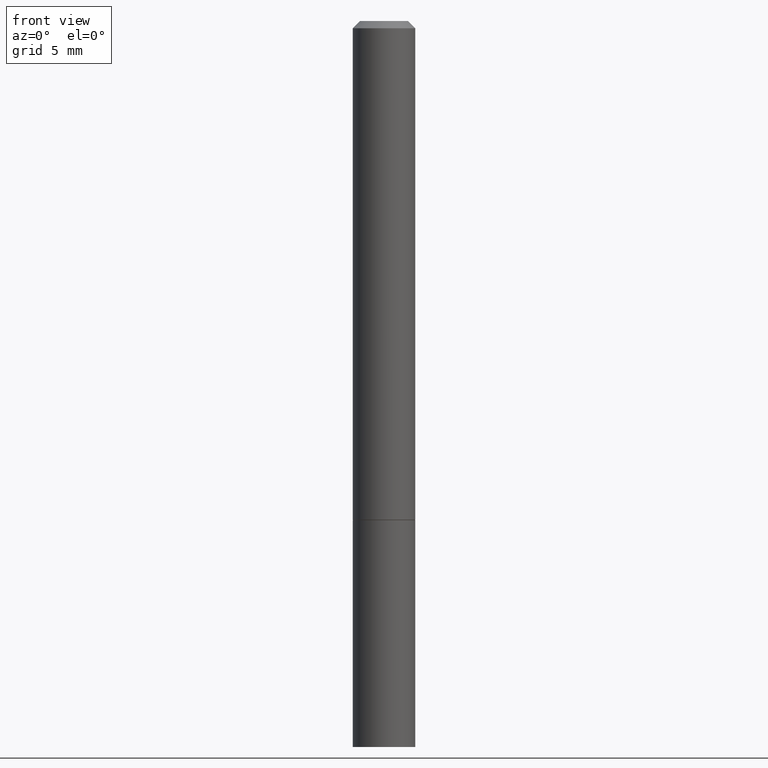
[diagram: clean part render]
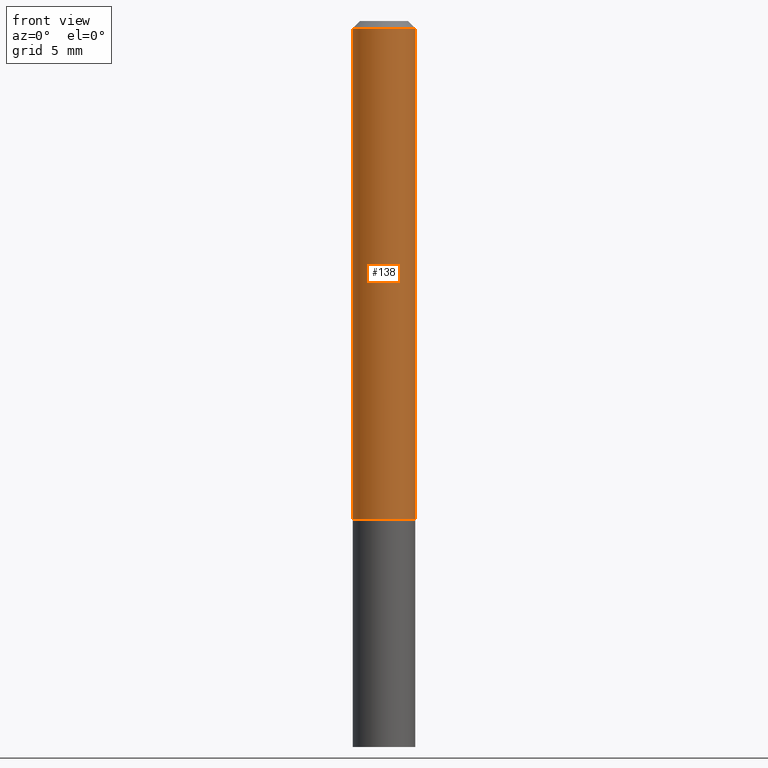
[diagram: same view with one face highlighted and labeled with its STEP entity id]
A machine part, front view. The second image highlights one B-rep face of the part: STEP entity #138.
In plain terms, the highlighted cylindrical surface (edge-blend (fillet) strip) has radius 2.1831 mm, axis along (-0, 0, 1).
Its self-contained STEP definition (entity closure, byte-faithful):
#2 = AXIS2_PLACEMENT_3D ( 'NONE', #16, #259, #106 ) ;
#16 = CARTESIAN_POINT ( 'NONE',  ( 4.890937612370278413E-31, -6.982962677686297772E-17, -0.02000000000000002123 ) ) ;
#18 = DIRECTION ( 'NONE',  ( -2.445468806185136877E-29, 3.491481338843145188E-15, 1.000000000000000000 ) ) ;
#20 = CARTESIAN_POINT ( 'NONE',  ( 0.000000000000000000, 0.000000000000000000, 0.000000000000000000 ) ) ;
#22 = CARTESIAN_POINT ( 'NONE',  ( -0.08594999999999981821, 5.303560153702704350E-16, -0.02000000000000002123 ) ) ;
#38 = ORIENTED_EDGE ( 'NONE', *, *, #130, .F. ) ;
#67 = DIRECTION ( 'NONE',  ( 1.000000000000000000, -6.982962677686261977E-15, 0.000000000000000000 ) ) ;
#77 = VECTOR ( 'NONE', #111, 39.37007874015748143 ) ;
#81 = LINE ( 'NONE', #377, #136 ) ;
#86 = EDGE_CURVE ( 'NONE', #313, #361, #208, .T. ) ;
#92 = ORIENTED_EDGE ( 'NONE', *, *, #86, .T. ) ;
#99 = ORIENTED_EDGE ( 'NONE', *, *, #143, .F. ) ;
#101 = VERTEX_POINT ( 'NONE', #22 ) ;
#106 = DIRECTION ( 'NONE',  ( 1.000000000000000000, -6.982962677686267499E-15, 0.000000000000000000 ) ) ;
#111 = DIRECTION ( 'NONE',  ( -2.445468806185136877E-29, 3.491481338843145188E-15, 1.000000000000000000 ) ) ;
#112 = CARTESIAN_POINT ( 'NONE',  ( -0.08594999999999997087, -1.822851011787864341E-15, -1.373999999999999888 ) ) ;
#118 = VERTEX_POINT ( 'NONE', #202 ) ;
#130 = EDGE_CURVE ( 'NONE', #313, #101, #260, .T. ) ;
#136 = VECTOR ( 'NONE', #18, 39.37007874015748143 ) ;
#138 = ADVANCED_FACE ( 'NONE', ( #139 ), #261, .T. ) ;
#139 = FACE_OUTER_BOUND ( 'NONE', #300, .T. ) ;
#143 = EDGE_CURVE ( 'NONE', #101, #118, #250, .T. ) ;
#166 = DIRECTION ( 'NONE',  ( -2.445468806185136597E-29, 3.491481338843145583E-15, 1.000000000000000000 ) ) ;
#178 = DIRECTION ( 'NONE',  ( 1.000000000000000000, -6.982962677686267499E-15, 4.876176775795936353E-29 ) ) ;
#197 = CARTESIAN_POINT ( 'NONE',  ( 3.360074139698377778E-29, -4.797295359570481134E-15, -1.373999999999999888 ) ) ;
#202 = CARTESIAN_POINT ( 'NONE',  ( 0.08594999999999981821, -6.594894296853248617E-16, -0.02000000000000002123 ) ) ;
#203 = AXIS2_PLACEMENT_3D ( 'NONE', #20, #381, #178 ) ;
#208 = CIRCLE ( 'NONE', #268, 0.08594999999999998475 ) ;
#250 = CIRCLE ( 'NONE', #2, 0.08594999999999981821 ) ;
#252 = EDGE_CURVE ( 'NONE', #361, #118, #81, .T. ) ;
#259 = DIRECTION ( 'NONE',  ( -2.445468806185136597E-29, 3.491481338843145583E-15, 1.000000000000000000 ) ) ;
#260 = LINE ( 'NONE', #322, #77 ) ;
#261 = CYLINDRICAL_SURFACE ( 'NONE', #203, 0.08594999999999990148 ) ;
#268 = AXIS2_PLACEMENT_3D ( 'NONE', #197, #166, #67 ) ;
#300 = EDGE_LOOP ( 'NONE', ( #38, #92, #317, #99 ) ) ;
#313 = VERTEX_POINT ( 'NONE', #112 ) ;
#317 = ORIENTED_EDGE ( 'NONE', *, *, #252, .T. ) ;
#322 = CARTESIAN_POINT ( 'NONE',  ( -0.08594999999999990148, 6.107114813858054097E-16, -4.227824710074086685E-30 ) ) ;
#359 = CARTESIAN_POINT ( 'NONE',  ( 0.08594999999999998475, -5.397481001717615360E-15, -1.373999999999999888 ) ) ;
#361 = VERTEX_POINT ( 'NONE', #359 ) ;
#377 = CARTESIAN_POINT ( 'NONE',  ( 0.08594999999999990148, -6.001856421471340290E-16, 4.191073938796602335E-30 ) ) ;
#381 = DIRECTION ( 'NONE',  ( -2.445468806185136597E-29, 3.491481338843145583E-15, 1.000000000000000000 ) ) ;